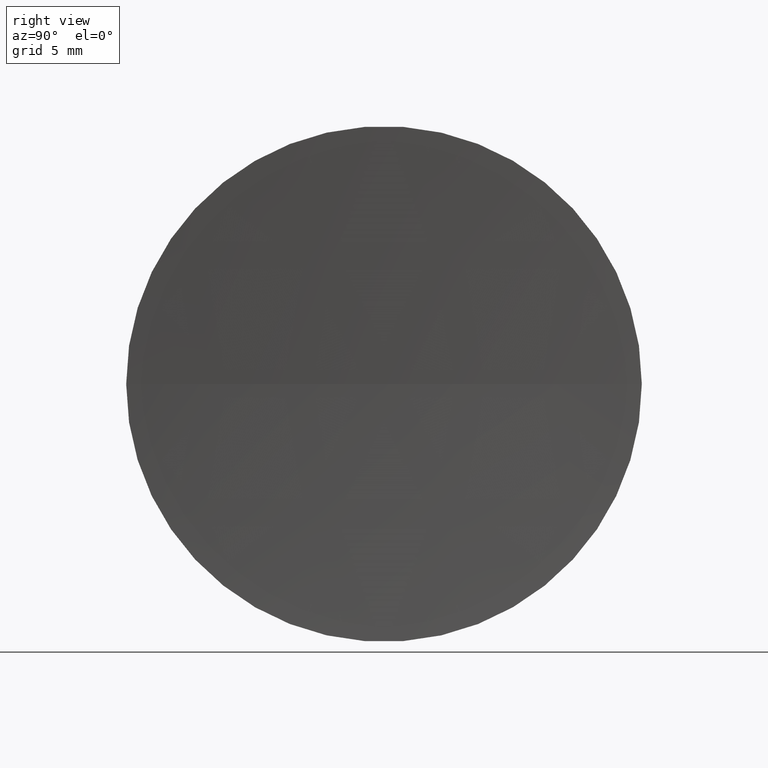
[diagram: clean part render]
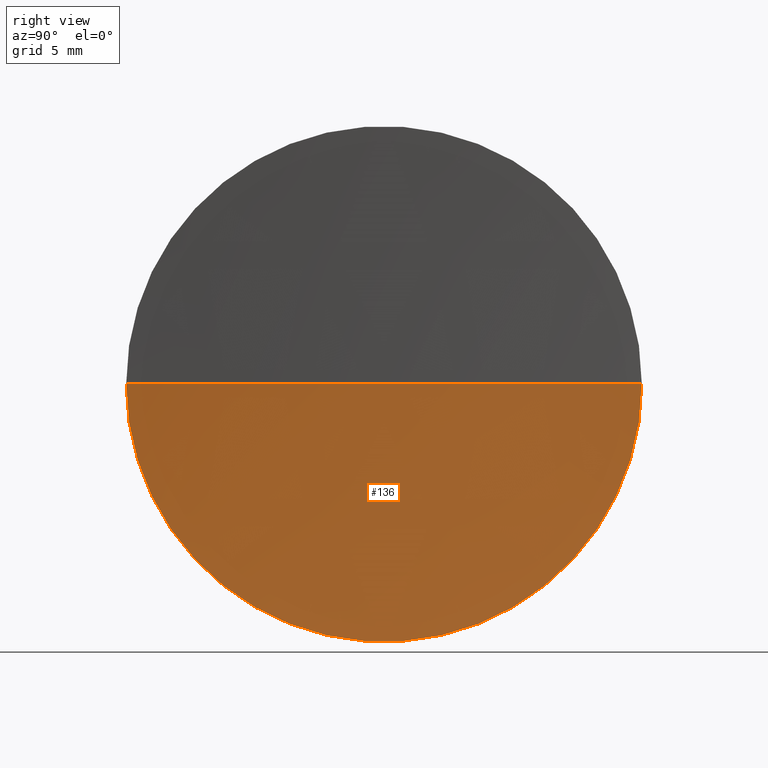
[diagram: same view with one face highlighted and labeled with its STEP entity id]
A machine part, right view. The second image highlights one B-rep face of the part: STEP entity #136.
In plain terms, the highlighted spherical surface has radius 236 mm.
Its self-contained STEP definition (entity closure, byte-faithful):
#9 = CIRCLE ( 'NONE', #182, 236.0000000000000000 ) ;
#10 = DIRECTION ( 'NONE',  ( 0.0000000000000000000, 1.000000000000000000, 1.224646799147353000E-016 ) ) ;
#15 = DIRECTION ( 'NONE',  ( -7.056502275159892200E-016, 1.000000000000000000, 0.0000000000000000000 ) ) ;
#23 = DIRECTION ( 'NONE',  ( -1.000000000000000000, -6.937607244762875000E-016, -0.0000000000000000000 ) ) ;
#26 = VERTEX_POINT ( 'NONE', #73 ) ;
#34 = VERTEX_POINT ( 'NONE', #189 ) ;
#44 = EDGE_CURVE ( 'NONE', #26, #34, #65, .T. ) ;
#47 = DIRECTION ( 'NONE',  ( 0.0000000000000000000, 0.0000000000000000000, -1.000000000000000000 ) ) ;
#49 = AXIS2_PLACEMENT_3D ( 'NONE', #123, #143, #10 ) ;
#50 = SPHERICAL_SURFACE ( 'NONE', #177, 236.0000000000000300 ) ;
#51 = ORIENTED_EDGE ( 'NONE', *, *, #44, .F. ) ;
#65 = CIRCLE ( 'NONE', #49, 236.0000000000000600 ) ;
#73 = CARTESIAN_POINT ( 'NONE',  ( 127.9235157946422300, 46.19184047094010700, -2.329890535377837900E-015 ) ) ;
#77 = ORIENTED_EDGE ( 'NONE', *, *, #95, .T. ) ;
#80 = CARTESIAN_POINT ( 'NONE',  ( 127.9235157946422300, 65.21684047094034000, 0.0000000000000000000 ) ) ;
#95 = EDGE_CURVE ( 'NONE', #122, #34, #9, .T. ) ;
#98 = FACE_OUTER_BOUND ( 'NONE', #191, .T. ) ;
#99 = CARTESIAN_POINT ( 'NONE',  ( 363.1554213155557700, 65.21684047094024100, 0.0000000000000000000 ) ) ;
#115 = CIRCLE ( 'NONE', #166, 19.02499999999996700 ) ;
#121 = DIRECTION ( 'NONE',  ( 0.0000000000000000000, -1.000000000000000000, 0.0000000000000000000 ) ) ;
#122 = VERTEX_POINT ( 'NONE', #160 ) ;
#123 = CARTESIAN_POINT ( 'NONE',  ( 363.1554213155557700, 65.21684047094024100, 0.0000000000000000000 ) ) ;
#128 = DIRECTION ( 'NONE',  ( 1.000000000000000000, 0.0000000000000000000, 0.0000000000000000000 ) ) ;
#136 = ADVANCED_FACE ( 'NONE', ( #98 ), #50, .F. ) ;
#143 = DIRECTION ( 'NONE',  ( -8.496118506040342700E-032, 1.224646799147353200E-016, -1.000000000000000000 ) ) ;
#159 = CARTESIAN_POINT ( 'NONE',  ( 363.1554213155557700, 65.21684047094024100, 0.0000000000000000000 ) ) ;
#160 = CARTESIAN_POINT ( 'NONE',  ( 127.9235157946422300, 84.24184047094033200, 0.0000000000000000000 ) ) ;
#164 = EDGE_CURVE ( 'NONE', #122, #26, #115, .T. ) ;
#166 = AXIS2_PLACEMENT_3D ( 'NONE', #80, #23, #121 ) ;
#173 = DIRECTION ( 'NONE',  ( 0.0000000000000000000, -0.0000000000000000000, 1.000000000000000000 ) ) ;
#177 = AXIS2_PLACEMENT_3D ( 'NONE', #159, #47, #15 ) ;
#182 = AXIS2_PLACEMENT_3D ( 'NONE', #99, #173, #128 ) ;
#187 = ORIENTED_EDGE ( 'NONE', *, *, #164, .F. ) ;
#189 = CARTESIAN_POINT ( 'NONE',  ( 127.1554213155557700, 65.21684047094008500, 0.0000000000000000000 ) ) ;
#191 = EDGE_LOOP ( 'NONE', ( #51, #187, #77 ) ) ;